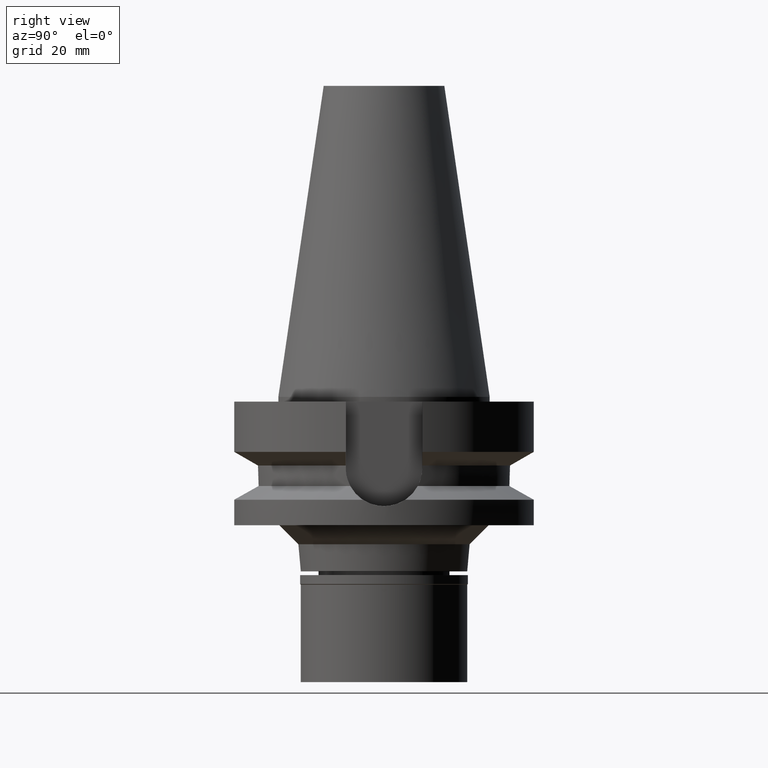
[diagram: clean part render]
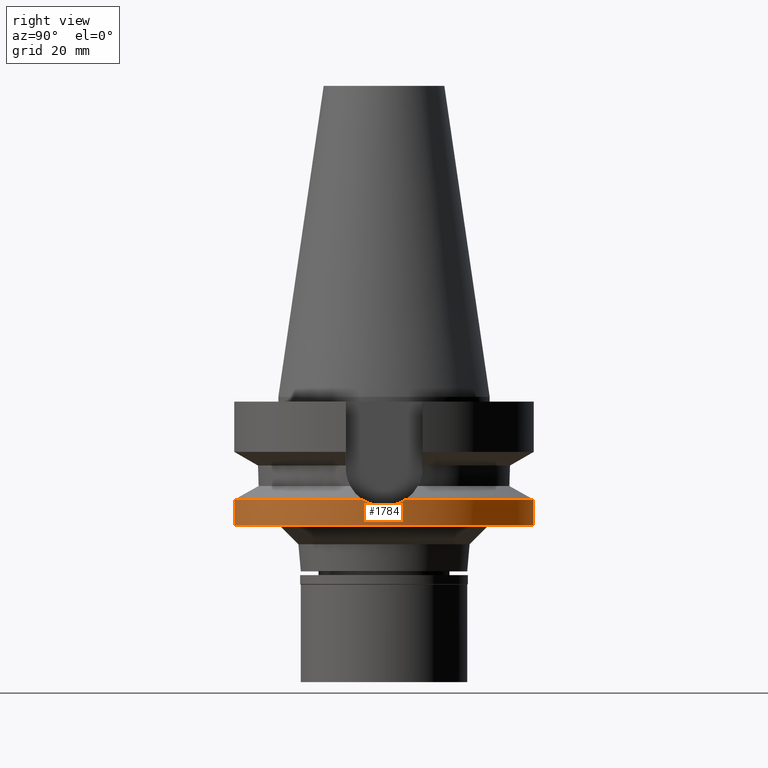
[diagram: same view with one face highlighted and labeled with its STEP entity id]
A machine part, right view. The second image highlights one B-rep face of the part: STEP entity #1784.
In plain terms, the highlighted cylindrical surface (partial cylindrical patch) has radius 31.5 mm, axis along (0, 0, -1).
Its self-contained STEP definition (entity closure, byte-faithful):
#4 = ORIENTED_EDGE ( 'NONE', *, *, #1238, .F. ) ;
#13 = CARTESIAN_POINT ( 'NONE',  ( 31.38995345624229927, -2.631089804254001407, -22.55883194693764082 ) ) ;
#34 = DIRECTION ( 'NONE',  ( 0.0000000000000000000, 0.0000000000000000000, -1.000000000000000000 ) ) ;
#90 = DIRECTION ( 'NONE',  ( 0.0000000000000000000, 1.000000000000000000, 0.0000000000000000000 ) ) ;
#130 = EDGE_CURVE ( 'NONE', #1596, #2620, #1253, .T. ) ;
#237 = CARTESIAN_POINT ( 'NONE',  ( 31.47114290507602874, -1.554796663238372956, -22.89008434575701756 ) ) ;
#273 = DIRECTION ( 'NONE',  ( 0.0000000000000000000, 1.099151708819000049E-13, -1.000000000000000000 ) ) ;
#320 = ORIENTED_EDGE ( 'NONE', *, *, #130, .F. ) ;
#380 = EDGE_CURVE ( 'NONE', #2142, #2620, #553, .T. ) ;
#384 = CARTESIAN_POINT ( 'NONE',  ( 31.49278639834606608, 0.7710438196499757035, -22.97268655621895306 ) ) ;
#443 = CARTESIAN_POINT ( 'NONE',  ( 31.41965005813987588, 2.247072451102948953, -22.68008986002388738 ) ) ;
#454 = CARTESIAN_POINT ( 'NONE',  ( 31.17899877608999759, -4.485536235554000051, -21.63449434733000132 ) ) ;
#509 = CARTESIAN_POINT ( 'NONE',  ( 31.17899877608999759, 4.485536235554000051, -21.63449434733000132 ) ) ;
#553 = CIRCLE ( 'NONE', #2149, 31.50000000000000000 ) ;
#587 = CARTESIAN_POINT ( 'NONE',  ( 31.23206219159662922, -4.116692003703872338, -21.88200209904533722 ) ) ;
#595 = VERTEX_POINT ( 'NONE', #454 ) ;
#609 = EDGE_CURVE ( 'NONE', #1596, #1317, #2827, .T. ) ;
#639 = LINE ( 'NONE', #2352, #1454 ) ;
#665 = CARTESIAN_POINT ( 'NONE',  ( 31.50000000000000000, -0.7651554269413264331, -23.00000000000000355 ) ) ;
#695 = CARTESIAN_POINT ( 'NONE',  ( 31.27812972761145360, -3.746556030148608496, -22.08615384555778505 ) ) ;
#766 = ORIENTED_EDGE ( 'NONE', *, *, #2274, .F. ) ;
#793 = CARTESIAN_POINT ( 'NONE',  ( 0.0000000000000000000, 31.50000000000000000, -27.00000000000000000 ) ) ;
#814 = CARTESIAN_POINT ( 'NONE',  ( 31.17899877608999759, -4.485536235554000051, -21.63449434733000132 ) ) ;
#848 = DIRECTION ( 'NONE',  ( 0.0000000000000000000, 0.0000000000000000000, 1.000000000000000000 ) ) ;
#913 = AXIS2_PLACEMENT_3D ( 'NONE', #2842, #34, #90 ) ;
#964 = CARTESIAN_POINT ( 'NONE',  ( 31.41252693101176519, -2.344406219108712719, -22.65106619706786262 ) ) ;
#983 = CARTESIAN_POINT ( 'NONE',  ( 31.41700835831545646, 2.283543664118167449, -22.66933216880426727 ) ) ;
#1110 = CARTESIAN_POINT ( 'NONE',  ( 31.17899877608999759, 4.485536235554000051, -21.63449434733000132 ) ) ;
#1121 = DIRECTION ( 'NONE',  ( 0.0000000000000000000, -1.000000000000000000, 0.0000000000000000000 ) ) ;
#1150 = DIRECTION ( 'NONE',  ( 0.0000000000000000000, 0.0000000000000000000, -1.000000000000000000 ) ) ;
#1238 = EDGE_CURVE ( 'NONE', #2226, #1317, #2277, .T. ) ;
#1253 = LINE ( 'NONE', #1453, #2877 ) ;
#1268 = AXIS2_PLACEMENT_3D ( 'NONE', #1523, #2492, #2475 ) ;
#1317 = VERTEX_POINT ( 'NONE', #1110 ) ;
#1344 = CARTESIAN_POINT ( 'NONE',  ( 31.46212859131685491, 1.551903289493235860, -22.85152805513951435 ) ) ;
#1445 = CARTESIAN_POINT ( 'NONE',  ( 31.41185438971834998, -2.353388662172788859, -22.64832348432943476 ) ) ;
#1453 = CARTESIAN_POINT ( 'NONE',  ( 0.0000000000000000000, 31.50000000000000000, -21.63449434733000132 ) ) ;
#1454 = VECTOR ( 'NONE', #2766, 1000.000000000000000 ) ;
#1506 = AXIS2_PLACEMENT_3D ( 'NONE', #1823, #1150, #1121 ) ;
#1523 = CARTESIAN_POINT ( 'NONE',  ( 0.0000000000000000000, 0.0000000000000000000, -21.63449434733000132 ) ) ;
#1557 = ORIENTED_EDGE ( 'NONE', *, *, #1674, .T. ) ;
#1569 = CARTESIAN_POINT ( 'NONE',  ( 31.50000000000000000, 0.0000000000000000000, -23.00000000000000000 ) ) ;
#1596 = VERTEX_POINT ( 'NONE', #2045 ) ;
#1629 = CARTESIAN_POINT ( 'NONE',  ( 0.0000000000000000000, -31.50000000000000000, -21.63449434733000132 ) ) ;
#1663 = CARTESIAN_POINT ( 'NONE',  ( 31.41422043550593557, 2.321593114297240579, -22.65797165830771576 ) ) ;
#1674 = EDGE_CURVE ( 'NONE', #1691, #2142, #639, .T. ) ;
#1691 = VERTEX_POINT ( 'NONE', #1629 ) ;
#1784 = ADVANCED_FACE ( 'NONE', ( #2325 ), #2753, .T. ) ;
#1790 = DIRECTION ( 'NONE',  ( 0.0000000000000000000, -1.000000000000000000, 0.0000000000000000000 ) ) ;
#1804 = CIRCLE ( 'NONE', #1268, 31.50000000000001421 ) ;
#1823 = CARTESIAN_POINT ( 'NONE',  ( 0.0000000000000000000, 2.098248593318999714E-14, 71.33499999999999375 ) ) ;
#1863 = CARTESIAN_POINT ( 'NONE',  ( 31.40784684085144107, -2.406367806376787488, -22.63197621435483597 ) ) ;
#2045 = CARTESIAN_POINT ( 'NONE',  ( 0.0000000000000000000, 31.50000000000000000, -21.63449434733000132 ) ) ;
#2125 = CARTESIAN_POINT ( 'NONE',  ( 31.50000000000000000, 0.0000000000000000000, -23.00000000000000000 ) ) ;
#2140 = CARTESIAN_POINT ( 'NONE',  ( 31.37858090355793905, -2.761758643384220502, -22.51201132466532329 ) ) ;
#2142 = VERTEX_POINT ( 'NONE', #2695 ) ;
#2149 = AXIS2_PLACEMENT_3D ( 'NONE', #2967, #848, #1790 ) ;
#2167 = CARTESIAN_POINT ( 'NONE',  ( 31.44589798759550447, 1.844932280561417892, -22.78637270914717661 ) ) ;
#2174 = B_SPLINE_CURVE_WITH_KNOTS ( 'NONE', 3,
 ( #814, #587, #695, #3052, #3063, #2140, #13, #2776, #1863, #2602, #1445, #964, #237, #665, #2125 ),
 .UNSPECIFIED., .F., .F.,
 ( 4, 2, 2, 1, 1, 1, 2, 2, 4 ),
 ( 0.0000000000000000000, 0.2499999999999946154, 0.3749999999999918954, 0.4374999999999906186, 0.4687499999999897304, 0.4843749999999891198, 0.4921874999999893419, 0.4999999999999895639, 1.000000000000000000 ),
 .UNSPECIFIED. ) ;
#2226 = VERTEX_POINT ( 'NONE', #2540 ) ;
#2274 = EDGE_CURVE ( 'NONE', #595, #2226, #2174, .T. ) ;
#2277 = B_SPLINE_CURVE_WITH_KNOTS ( 'NONE', 3,
 ( #1569, #2514, #384, #3007, #1344, #2167, #2878, #2588, #443, #983, #2831, #1663, #2619, #2860, #509 ),
 .UNSPECIFIED., .F., .F.,
 ( 4, 2, 2, 1, 1, 1, 2, 2, 4 ),
 ( 0.0000000000000000000, 0.2500000000000113243, 0.3750000000000170974, 0.4375000000000200950, 0.4687500000000218159, 0.4843750000000223155, 0.4921875000000220379, 0.5000000000000216493, 1.000000000000000000 ),
 .UNSPECIFIED. ) ;
#2325 = FACE_OUTER_BOUND ( 'NONE', #2921, .T. ) ;
#2352 = CARTESIAN_POINT ( 'NONE',  ( 0.0000000000000000000, -31.50000000000000000, -21.63449434733000132 ) ) ;
#2475 = DIRECTION ( 'NONE',  ( 0.9898094849552905306, -0.1423979757318985240, 0.0000000000000000000 ) ) ;
#2492 = DIRECTION ( 'NONE',  ( 0.0000000000000000000, 0.0000000000000000000, -1.000000000000000000 ) ) ;
#2514 = CARTESIAN_POINT ( 'NONE',  ( 31.50000000000000000, 0.3825415463719509246, -23.00000000000000355 ) ) ;
#2540 = CARTESIAN_POINT ( 'NONE',  ( 31.50000000000000000, 0.0000000000000000000, -23.00000000000000000 ) ) ;
#2559 = ORIENTED_EDGE ( 'NONE', *, *, #609, .T. ) ;
#2588 = CARTESIAN_POINT ( 'NONE',  ( 31.42566608920675009, 2.161912855910136599, -22.70455434715237786 ) ) ;
#2602 = CARTESIAN_POINT ( 'NONE',  ( 31.41025956846787892, -2.374562832959483227, -22.64181864170944536 ) ) ;
#2619 = CARTESIAN_POINT ( 'NONE',  ( 31.36328283755199919, 3.007832628915092954, -22.45025453262910986 ) ) ;
#2620 = VERTEX_POINT ( 'NONE', #793 ) ;
#2695 = CARTESIAN_POINT ( 'NONE',  ( 0.0000000000000000000, -31.50000000000000000, -27.00000000000000000 ) ) ;
#2717 = ORIENTED_EDGE ( 'NONE', *, *, #380, .T. ) ;
#2732 = EDGE_CURVE ( 'NONE', #595, #1691, #1804, .T. ) ;
#2753 = CYLINDRICAL_SURFACE ( 'NONE', #1506, 31.50000000000000000 ) ;
#2766 = DIRECTION ( 'NONE',  ( 0.0000000000000000000, -1.105773104655000034E-13, -1.000000000000000000 ) ) ;
#2776 = CARTESIAN_POINT ( 'NONE',  ( 31.40207367289492879, -2.480881812470818737, -22.60840945406810576 ) ) ;
#2798 = ORIENTED_EDGE ( 'NONE', *, *, #2732, .T. ) ;
#2827 = CIRCLE ( 'NONE', #913, 31.50000000000000000 ) ;
#2831 = CARTESIAN_POINT ( 'NONE',  ( 31.41523313603342871, 2.307851765032669089, -22.66209965112653180 ) ) ;
#2842 = CARTESIAN_POINT ( 'NONE',  ( 0.0000000000000000000, 0.0000000000000000000, -21.63449434733000132 ) ) ;
#2860 = CARTESIAN_POINT ( 'NONE',  ( 31.28513683619772578, 3.747769718380133064, -22.12956222744666590 ) ) ;
#2877 = VECTOR ( 'NONE', #273, 1000.000000000000000 ) ;
#2878 = CARTESIAN_POINT ( 'NONE',  ( 31.43710641057978350, 1.991379779744103296, -22.75094280097368227 ) ) ;
#2921 = EDGE_LOOP ( 'NONE', ( #2798, #1557, #2717, #320, #2559, #4, #766 ) ) ;
#2967 = CARTESIAN_POINT ( 'NONE',  ( 0.0000000000000000000, 2.098248593318999714E-14, -27.00000000000000000 ) ) ;
#3007 = CARTESIAN_POINT ( 'NONE',  ( 31.47114559338426432, 1.356374570415840752, -22.88735630185001924 ) ) ;
#3052 = CARTESIAN_POINT ( 'NONE',  ( 31.33673721239597398, -3.204096010012915663, -22.33755624054715838 ) ) ;
#3063 = CARTESIAN_POINT ( 'NONE',  ( 31.35452407078453163, -3.025350768324190476, -22.41224209224660413 ) ) ;